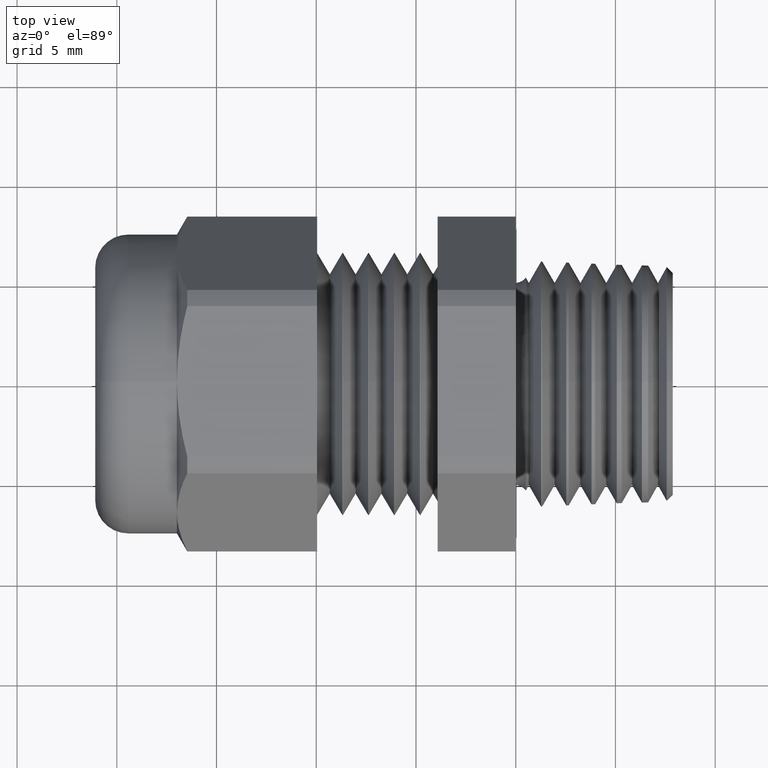
[diagram: clean part render]
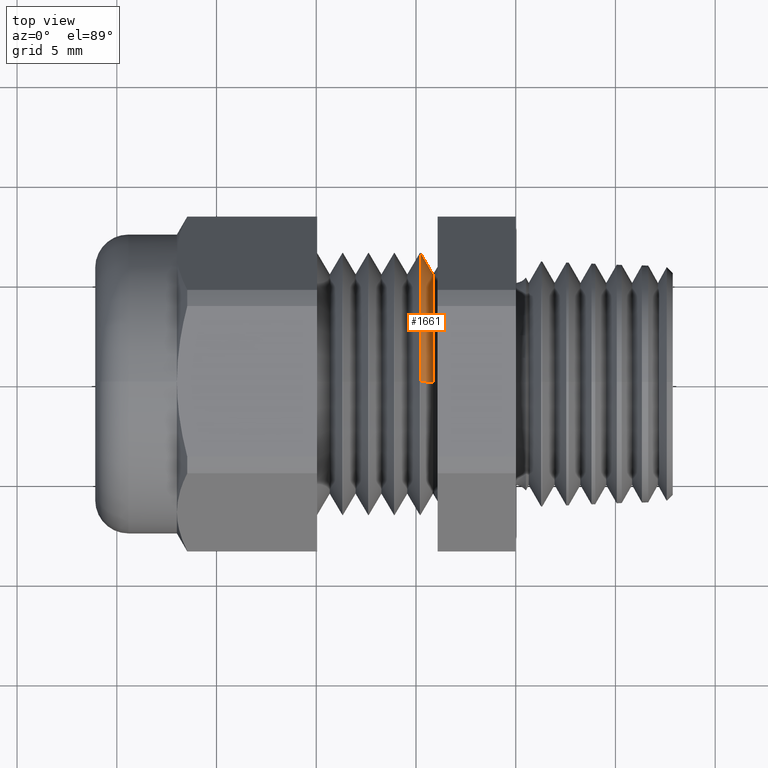
[diagram: same view with one face highlighted and labeled with its STEP entity id]
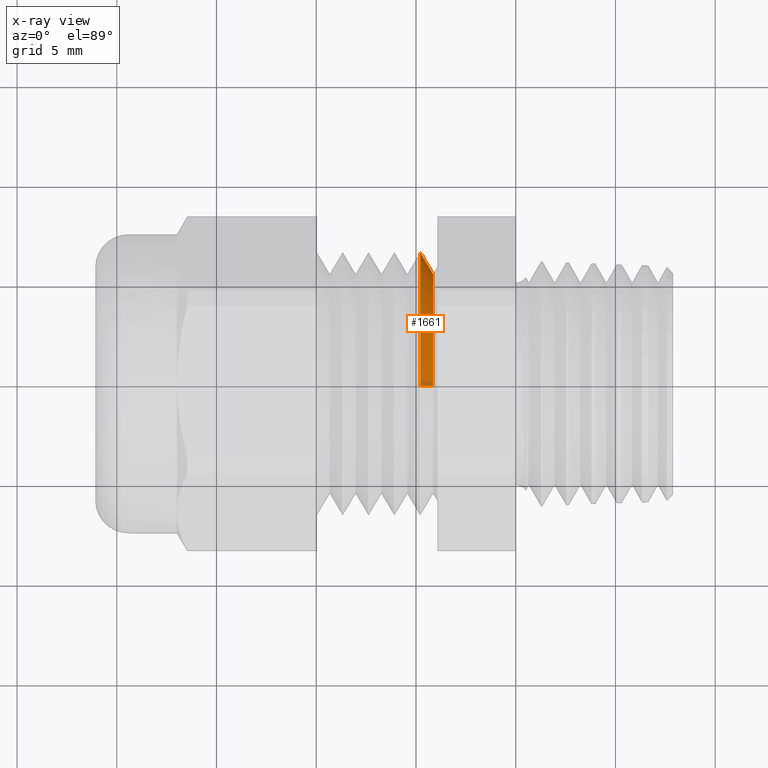
[diagram: x-ray of the same camera — body ghosted, the highlighted face saturated]
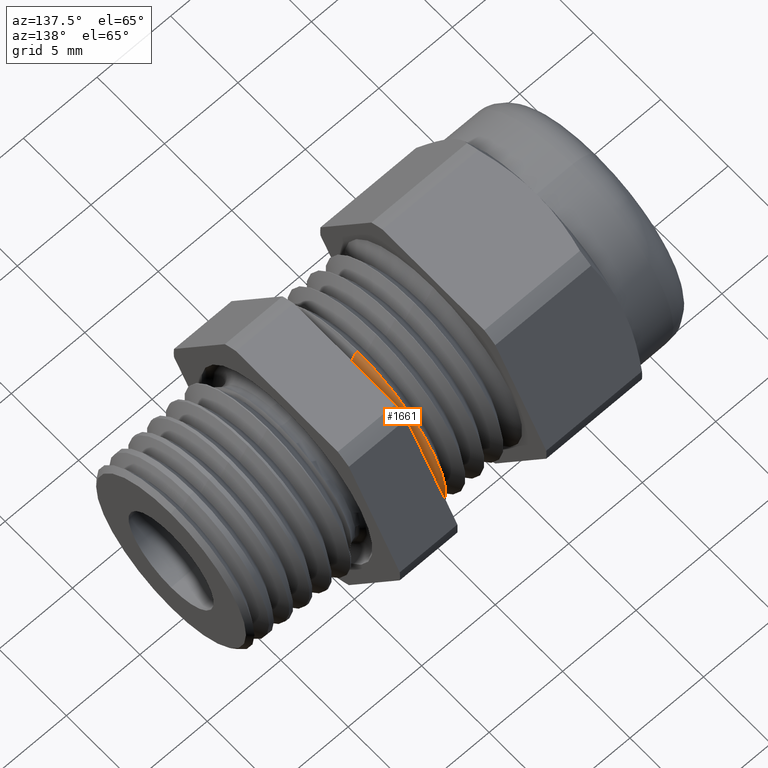
[diagram: same view with one face highlighted and labeled with its STEP entity id]
A machine part, top view. The second image highlights one B-rep face of the part: STEP entity #1661.
The next image is the same camera in x-ray: the body ghosted, the highlighted face saturated — about 4% of this face is hidden behind the body in this view.
A second angle (auxiliary view) of the same face is appended — the face is thin or edge-on in the first view.
In plain terms, the highlighted conical surface has half-angle 60 deg.
Its self-contained STEP definition (entity closure, byte-faithful):
#290 = DIRECTION ( 'NONE',  ( -0.4999999999999960000, 0.0000000000000000000, 0.8660254037844409300 ) ) ;
#291 = VECTOR ( 'NONE', #290, 39.37007874015748100 ) ;
#292 = CARTESIAN_POINT ( 'NONE',  ( -0.1880833333333334900, 0.0000000000000000000, 0.2596999999999999900 ) ) ;
#293 = LINE ( 'NONE', #292, #291 ) ;
#294 = CARTESIAN_POINT ( 'NONE',  ( -0.1880833333333334900, 0.0000000000000000000, 0.2596999999999999900 ) ) ;
#295 = DIRECTION ( 'NONE',  ( 0.0000000000000000000, 0.0000000000000000000, -1.000000000000000000 ) ) ;
#296 = DIRECTION ( 'NONE',  ( 1.000000000000000000, 0.0000000000000000000, 0.0000000000000000000 ) ) ;
#297 = CARTESIAN_POINT ( 'NONE',  ( -0.1880833333333334900, 0.0000000000000000000, 0.0000000000000000000 ) ) ;
#298 = AXIS2_PLACEMENT_3D ( 'NONE', #297, #296, #295 ) ;
#299 = CIRCLE ( 'NONE', #298, 0.2596999999999999900 ) ;
#305 = CARTESIAN_POINT ( 'NONE',  ( -0.1880833333333334900, 3.180407737385675900E-017, -0.2596999999999999900 ) ) ;
#306 = DIRECTION ( 'NONE',  ( -0.4999999999999960000, 1.060575238724909600E-016, -0.8660254037844409300 ) ) ;
#307 = VECTOR ( 'NONE', #306, 39.37007874015748100 ) ;
#308 = CARTESIAN_POINT ( 'NONE',  ( -0.1880833333333334900, 3.180407737385675900E-017, -0.2596999999999999900 ) ) ;
#309 = LINE ( 'NONE', #308, #307 ) ;
#310 = CARTESIAN_POINT ( 'NONE',  ( -0.1630833449895864900, 2.915264051327779200E-017, 0.2163987499999999500 ) ) ;
#320 = CARTESIAN_POINT ( 'NONE',  ( -0.1630833449895864900, 0.0000000000000000000, -0.2163987499999999500 ) ) ;
#321 = DIRECTION ( 'NONE',  ( 0.0000000000000000000, 0.0000000000000000000, -1.000000000000000000 ) ) ;
#322 = DIRECTION ( 'NONE',  ( 1.000000000000000000, 0.0000000000000000000, 0.0000000000000000000 ) ) ;
#323 = AXIS2_PLACEMENT_3D ( 'NONE', #330, #322, #321 ) ;
#324 = CIRCLE ( 'NONE', #323, 0.2163987499999999500 ) ;
#325 = DIRECTION ( 'NONE',  ( 0.0000000000000000000, 0.0000000000000000000, 1.000000000000000000 ) ) ;
#326 = DIRECTION ( 'NONE',  ( -1.000000000000000000, 0.0000000000000000000, 0.0000000000000000000 ) ) ;
#327 = CARTESIAN_POINT ( 'NONE',  ( -0.1880833333333334900, 0.0000000000000000000, 0.0000000000000000000 ) ) ;
#328 = AXIS2_PLACEMENT_3D ( 'NONE', #327, #326, #325 ) ;
#329 = CONICAL_SURFACE ( 'NONE', #328, 0.2596999999999999900, 1.047197551196602300 ) ;
#330 = CARTESIAN_POINT ( 'NONE',  ( -0.1630833449895864900, 0.0000000000000000000, 0.0000000000000000000 ) ) ;
#331 = FACE_OUTER_BOUND ( 'NONE', #1662, .T. ) ;
#1639 = VERTEX_POINT ( 'NONE', #310 ) ;
#1640 = ORIENTED_EDGE ( 'NONE', *, *, #1641, .T. ) ;
#1641 = EDGE_CURVE ( 'NONE', #1665, #1642, #309, .T. ) ;
#1642 = VERTEX_POINT ( 'NONE', #305 ) ;
#1647 = ORIENTED_EDGE ( 'NONE', *, *, #1648, .T. ) ;
#1648 = EDGE_CURVE ( 'NONE', #1642, #1649, #299, .T. ) ;
#1649 = VERTEX_POINT ( 'NONE', #294 ) ;
#1650 = ORIENTED_EDGE ( 'NONE', *, *, #1651, .F. ) ;
#1651 = EDGE_CURVE ( 'NONE', #1639, #1649, #293, .T. ) ;
#1661 = ADVANCED_FACE ( 'NONE', ( #331 ), #329, .T. ) ;
#1662 = EDGE_LOOP ( 'NONE', ( #1663, #1640, #1647, #1650 ) ) ;
#1663 = ORIENTED_EDGE ( 'NONE', *, *, #1664, .F. ) ;
#1664 = EDGE_CURVE ( 'NONE', #1665, #1639, #324, .T. ) ;
#1665 = VERTEX_POINT ( 'NONE', #320 ) ;